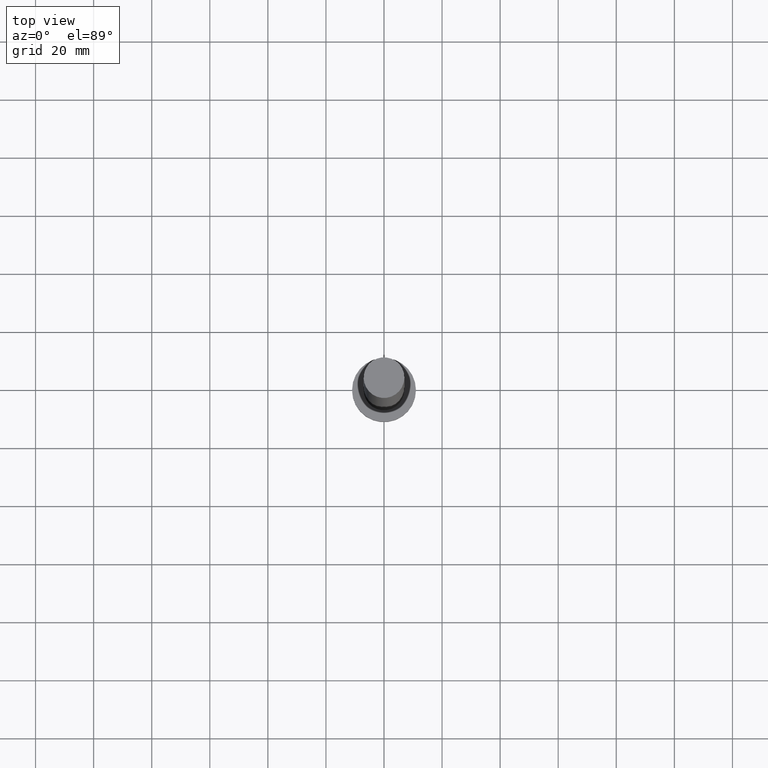
[diagram: clean part render]
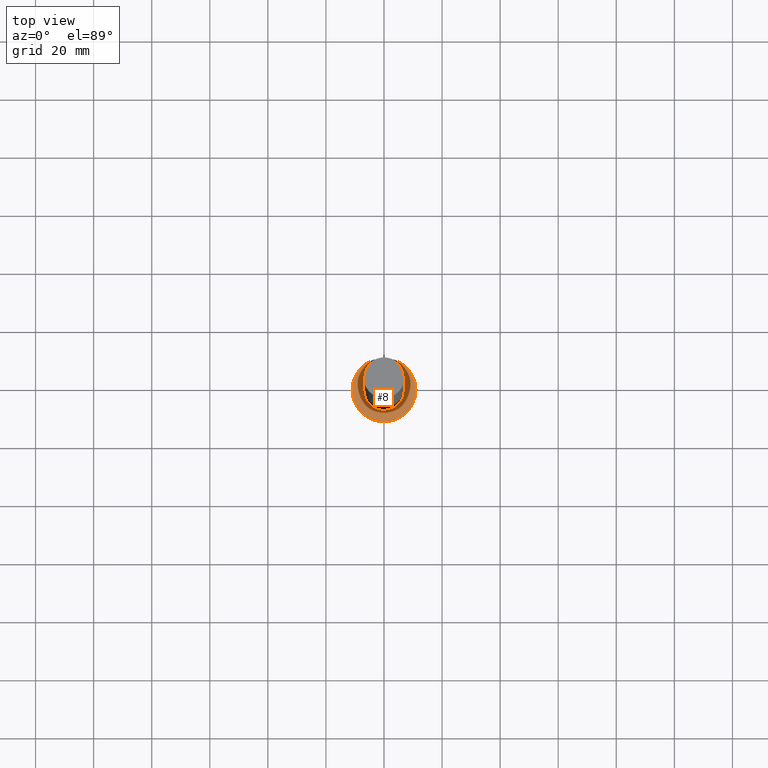
[diagram: same view with one face highlighted and labeled with its STEP entity id]
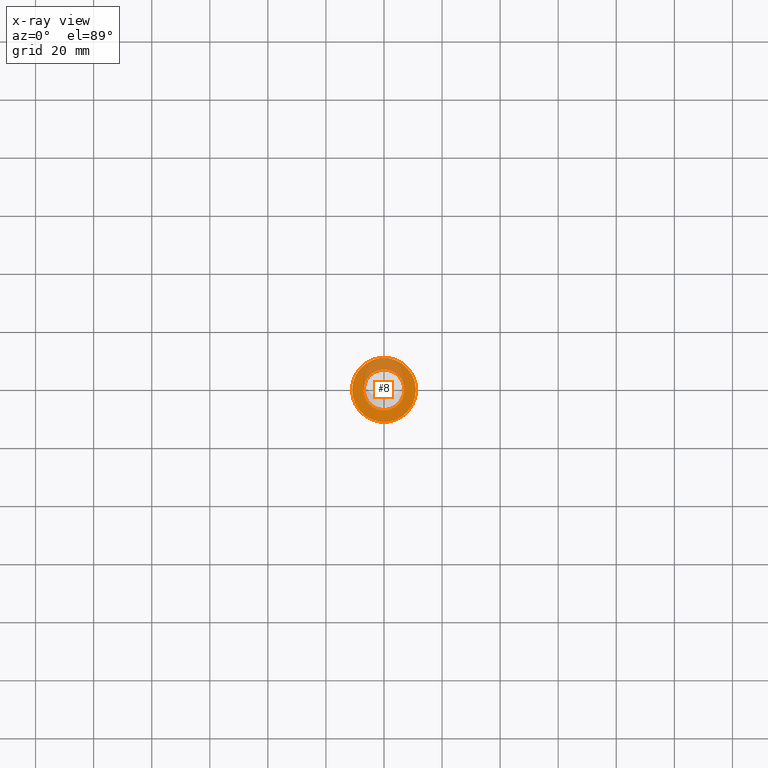
[diagram: x-ray of the same camera — body ghosted, the highlighted face saturated]
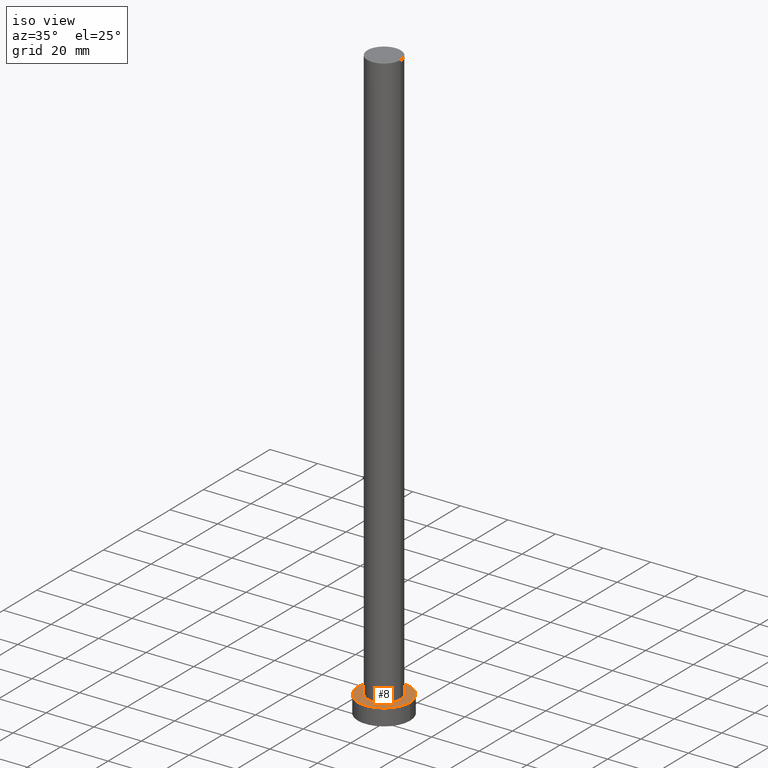
[diagram: same view with one face highlighted and labeled with its STEP entity id]
A machine part, top view. The second image highlights one B-rep face of the part: STEP entity #8.
The next image is the same camera in x-ray: the body ghosted, the highlighted face saturated — about 26% of this face is hidden behind the body in this view.
A second angle (iso view) of the same face is appended — the face is thin or edge-on in the first view.
In plain terms, the highlighted planar face has unit normal (0, 0, 1).
Its self-contained STEP definition (entity closure, byte-faithful):
#3 = CARTESIAN_POINT ( 'NONE',  ( 7.000000000000000888, 8.572527594031474176E-16, 7.000000000000000000 ) ) ;
#6 = AXIS2_PLACEMENT_3D ( 'NONE', #189, #82, #33 ) ;
#8 = ADVANCED_FACE ( 'NONE', ( #139, #142 ), #80, .T. ) ;
#14 = EDGE_CURVE ( 'NONE', #181, #244, #21, .T. ) ;
#21 = CIRCLE ( 'NONE', #146, 11.00000000000000000 ) ;
#25 = DIRECTION ( 'NONE',  ( 0.000000000000000000, 0.000000000000000000, 1.000000000000000000 ) ) ;
#28 = EDGE_LOOP ( 'NONE', ( #93, #224 ) ) ;
#33 = DIRECTION ( 'NONE',  ( 1.000000000000000000, 0.000000000000000000, 0.000000000000000000 ) ) ;
#35 = AXIS2_PLACEMENT_3D ( 'NONE', #174, #25, #193 ) ;
#39 = DIRECTION ( 'NONE',  ( 0.000000000000000000, 0.000000000000000000, 1.000000000000000000 ) ) ;
#58 = CARTESIAN_POINT ( 'NONE',  ( -11.00000000000000000, 0.000000000000000000, 7.000000000000000000 ) ) ;
#79 = EDGE_LOOP ( 'NONE', ( #117, #243 ) ) ;
#80 = PLANE ( 'NONE',  #240 ) ;
#82 = DIRECTION ( 'NONE',  ( 0.000000000000000000, 0.000000000000000000, 1.000000000000000000 ) ) ;
#93 = ORIENTED_EDGE ( 'NONE', *, *, #208, .F. ) ;
#104 = DIRECTION ( 'NONE',  ( 1.000000000000000000, 0.000000000000000000, -0.000000000000000000 ) ) ;
#117 = ORIENTED_EDGE ( 'NONE', *, *, #173, .T. ) ;
#118 = DIRECTION ( 'NONE',  ( 0.000000000000000000, 0.000000000000000000, 1.000000000000000000 ) ) ;
#131 = AXIS2_PLACEMENT_3D ( 'NONE', #234, #39, #172 ) ;
#135 = CIRCLE ( 'NONE', #131, 7.000000000000000888 ) ;
#139 = FACE_BOUND ( 'NONE', #28, .T. ) ;
#142 = FACE_OUTER_BOUND ( 'NONE', #79, .T. ) ;
#146 = AXIS2_PLACEMENT_3D ( 'NONE', #202, #169, #188 ) ;
#162 = VERTEX_POINT ( 'NONE', #231 ) ;
#169 = DIRECTION ( 'NONE',  ( 0.000000000000000000, 0.000000000000000000, 1.000000000000000000 ) ) ;
#172 = DIRECTION ( 'NONE',  ( 1.000000000000000000, 0.000000000000000000, 0.000000000000000000 ) ) ;
#173 = EDGE_CURVE ( 'NONE', #244, #181, #223, .T. ) ;
#174 = CARTESIAN_POINT ( 'NONE',  ( 0.000000000000000000, 0.000000000000000000, 7.000000000000000000 ) ) ;
#181 = VERTEX_POINT ( 'NONE', #194 ) ;
#188 = DIRECTION ( 'NONE',  ( 1.000000000000000000, 0.000000000000000000, 0.000000000000000000 ) ) ;
#189 = CARTESIAN_POINT ( 'NONE',  ( 0.000000000000000000, 0.000000000000000000, 7.000000000000000000 ) ) ;
#193 = DIRECTION ( 'NONE',  ( 1.000000000000000000, 0.000000000000000000, 0.000000000000000000 ) ) ;
#194 = CARTESIAN_POINT ( 'NONE',  ( 11.00000000000000000, 1.347111479062088405E-15, 7.000000000000000000 ) ) ;
#202 = CARTESIAN_POINT ( 'NONE',  ( 0.000000000000000000, 0.000000000000000000, 7.000000000000000000 ) ) ;
#207 = CARTESIAN_POINT ( 'NONE',  ( 0.000000000000000000, 0.000000000000000000, 7.000000000000000000 ) ) ;
#208 = EDGE_CURVE ( 'NONE', #162, #217, #135, .T. ) ;
#214 = EDGE_CURVE ( 'NONE', #217, #162, #228, .T. ) ;
#217 = VERTEX_POINT ( 'NONE', #3 ) ;
#223 = CIRCLE ( 'NONE', #6, 11.00000000000000000 ) ;
#224 = ORIENTED_EDGE ( 'NONE', *, *, #214, .F. ) ;
#228 = CIRCLE ( 'NONE', #35, 7.000000000000000888 ) ;
#231 = CARTESIAN_POINT ( 'NONE',  ( -7.000000000000000888, 0.000000000000000000, 7.000000000000000000 ) ) ;
#234 = CARTESIAN_POINT ( 'NONE',  ( 0.000000000000000000, 0.000000000000000000, 7.000000000000000000 ) ) ;
#240 = AXIS2_PLACEMENT_3D ( 'NONE', #207, #118, #104 ) ;
#243 = ORIENTED_EDGE ( 'NONE', *, *, #14, .T. ) ;
#244 = VERTEX_POINT ( 'NONE', #58 ) ;